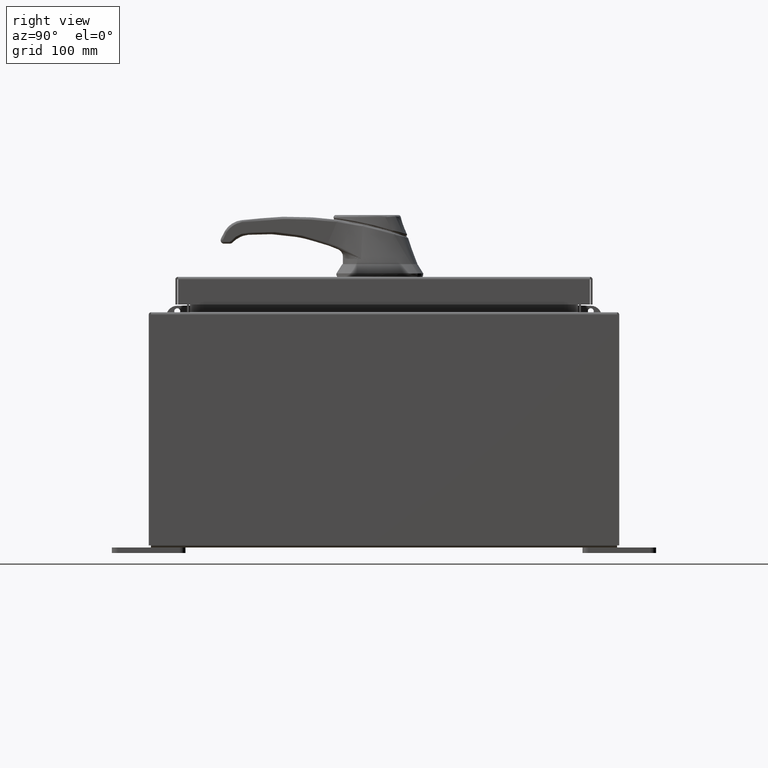
[diagram: clean part render]
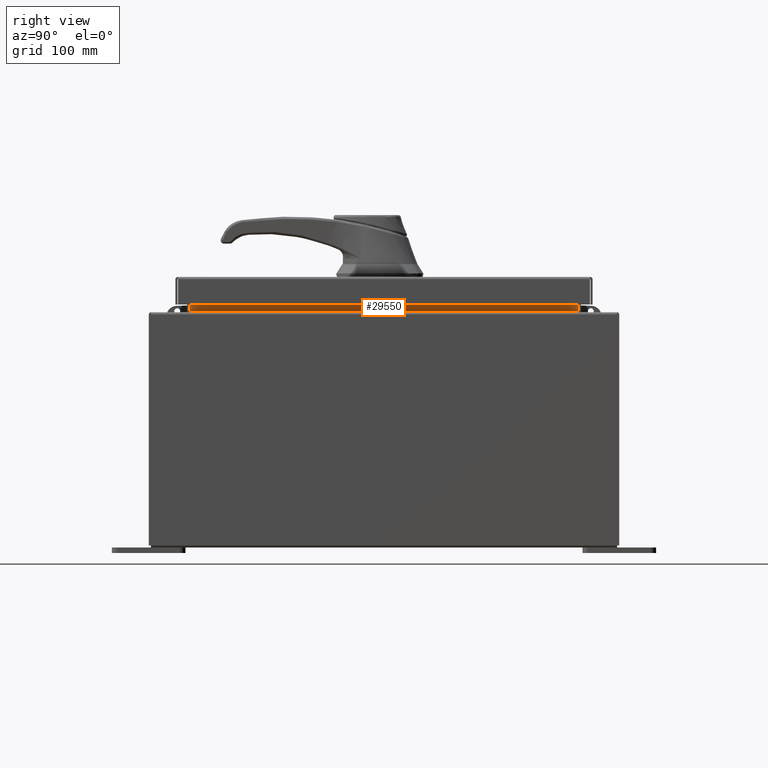
[diagram: same view with one face highlighted and labeled with its STEP entity id]
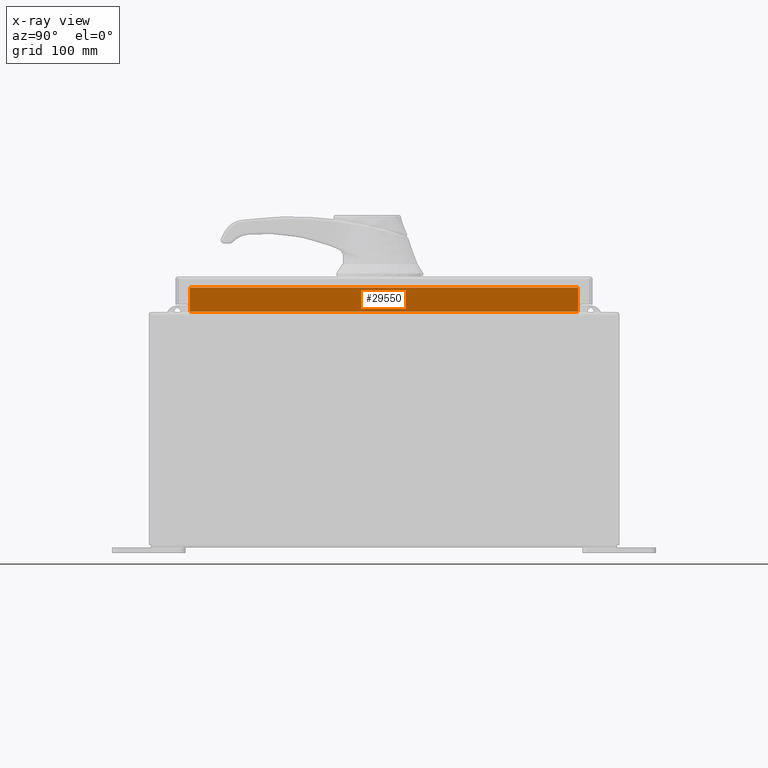
[diagram: x-ray of the same camera — body ghosted, the highlighted face saturated]
A machine part, right view. The second image highlights one B-rep face of the part: STEP entity #29550.
The next image is the same camera in x-ray: the body ghosted, the highlighted face saturated — about 0% of this face is hidden behind the body in this view.
In plain terms, the highlighted planar face has unit normal (1, -0, -0).
Its self-contained STEP definition (entity closure, byte-faithful):
#734 = VERTEX_POINT ( 'NONE', #31713 ) ;
#1147 = VECTOR ( 'NONE', #11392, 39.37007874015748100 ) ;
#3370 = DIRECTION ( 'NONE',  ( 2.952391649912745200E-015, -0.0000000000000000000, 1.000000000000000000 ) ) ;
#5472 = CARTESIAN_POINT ( 'NONE',  ( 4.699700000000031100, 6.593750000000000900, 8.762900000000009000 ) ) ;
#5484 = VECTOR ( 'NONE', #3370, 39.37007874015748100 ) ;
#11392 = DIRECTION ( 'NONE',  ( 0.0000000000000000000, -1.000000000000000000, 8.286174009218617400E-017 ) ) ;
#17503 = ORIENTED_EDGE ( 'NONE', *, *, #76798, .F. ) ;
#18587 = DIRECTION ( 'NONE',  ( 0.0000000000000000000, 1.000000000000000000, 0.0000000000000000000 ) ) ;
#24397 = EDGE_CURVE ( 'NONE', #59321, #46377, #52939, .T. ) ;
#24976 = EDGE_LOOP ( 'NONE', ( #62347, #38416, #90256, #17503 ) ) ;
#26917 = FACE_OUTER_BOUND ( 'NONE', #24976, .T. ) ;
#29550 = ADVANCED_FACE ( 'NONE', ( #26917 ), #78305, .T. ) ;
#31713 = CARTESIAN_POINT ( 'NONE',  ( 4.699700000000029300, -6.593750000000000900, 8.762900000000009000 ) ) ;
#33575 = CARTESIAN_POINT ( 'NONE',  ( 4.699700000000026600, 6.593750000000000900, 7.925300000000007100 ) ) ;
#38416 = ORIENTED_EDGE ( 'NONE', *, *, #63401, .F. ) ;
#40470 = AXIS2_PLACEMENT_3D ( 'NONE', #86159, #94746, #45726 ) ;
#45726 = DIRECTION ( 'NONE',  ( -2.952391649912745200E-015, 0.0000000000000000000, -1.000000000000000000 ) ) ;
#46377 = VERTEX_POINT ( 'NONE', #76484 ) ;
#48879 = LINE ( 'NONE', #92358, #5484 ) ;
#52939 = LINE ( 'NONE', #33575, #66981 ) ;
#57660 = VECTOR ( 'NONE', #18587, 39.37007874015748100 ) ;
#59321 = VERTEX_POINT ( 'NONE', #5472 ) ;
#62347 = ORIENTED_EDGE ( 'NONE', *, *, #24397, .F. ) ;
#63401 = EDGE_CURVE ( 'NONE', #734, #59321, #81994, .T. ) ;
#63704 = LINE ( 'NONE', #68552, #1147 ) ;
#66981 = VECTOR ( 'NONE', #90819, 39.37007874015748100 ) ;
#68552 = CARTESIAN_POINT ( 'NONE',  ( 4.699700000000027500, 6.593750000000000900, 7.938300000000007900 ) ) ;
#69936 = VERTEX_POINT ( 'NONE', #81301 ) ;
#75806 = CARTESIAN_POINT ( 'NONE',  ( 4.699700000000031100, -6.593750000000000900, 8.762900000000009000 ) ) ;
#76484 = CARTESIAN_POINT ( 'NONE',  ( 4.699700000000026600, 6.593750000000000000, 7.938300000000008800 ) ) ;
#76798 = EDGE_CURVE ( 'NONE', #46377, #69936, #63704, .T. ) ;
#78305 = PLANE ( 'NONE',  #40470 ) ;
#81301 = CARTESIAN_POINT ( 'NONE',  ( 4.699700000000026600, -6.593750000000002700, 7.938300000000008800 ) ) ;
#81994 = LINE ( 'NONE', #75806, #57660 ) ;
#86159 = CARTESIAN_POINT ( 'NONE',  ( 4.699700000000003500, -1.149736062770567100E-030, -1.387535503709493800E-014 ) ) ;
#90256 = ORIENTED_EDGE ( 'NONE', *, *, #90360, .F. ) ;
#90360 = EDGE_CURVE ( 'NONE', #69936, #734, #48879, .T. ) ;
#90819 = DIRECTION ( 'NONE',  ( -2.952391649912745200E-015, -0.0000000000000000000, -1.000000000000000000 ) ) ;
#92358 = CARTESIAN_POINT ( 'NONE',  ( 4.699700000000029300, -6.593750000000000900, 8.850600000000008900 ) ) ;
#94746 = DIRECTION ( 'NONE',  ( 1.000000000000000000, -2.446403095454106200E-031, -2.952391649912745200E-015 ) ) ;